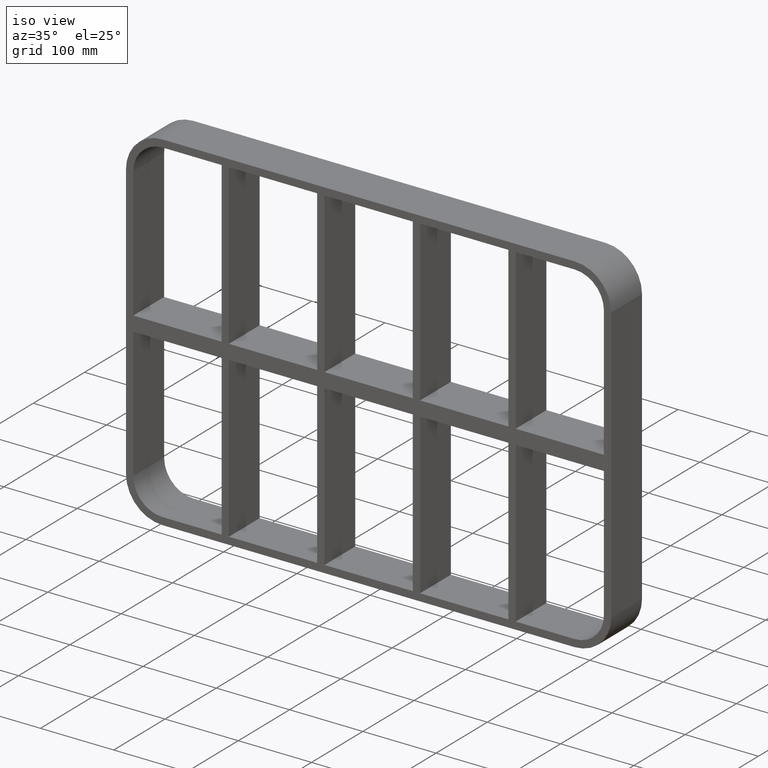
[diagram: clean part render]
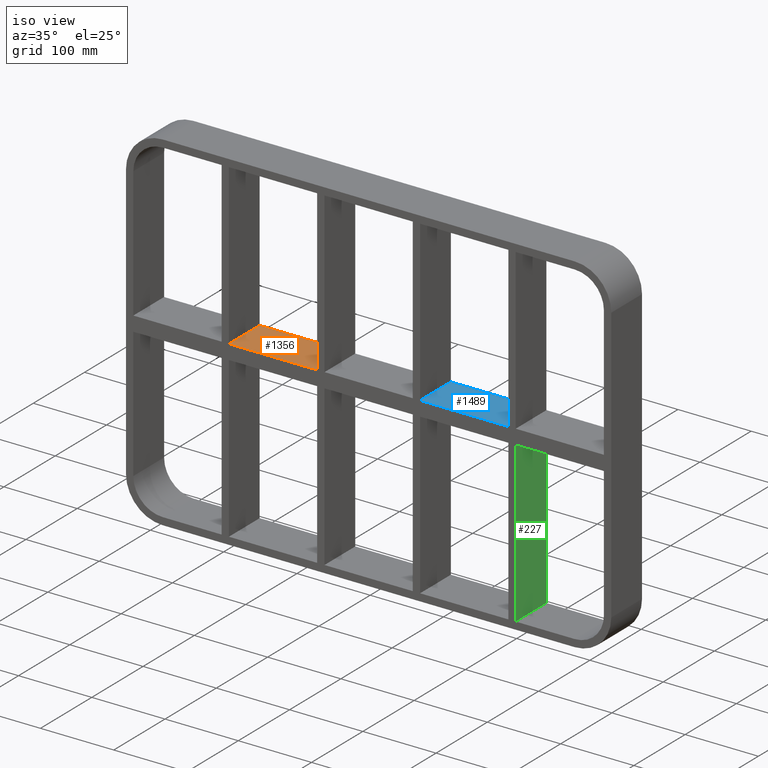
[diagram: same view with three faces highlighted in distinct colors, each labeled with its STEP entity id]
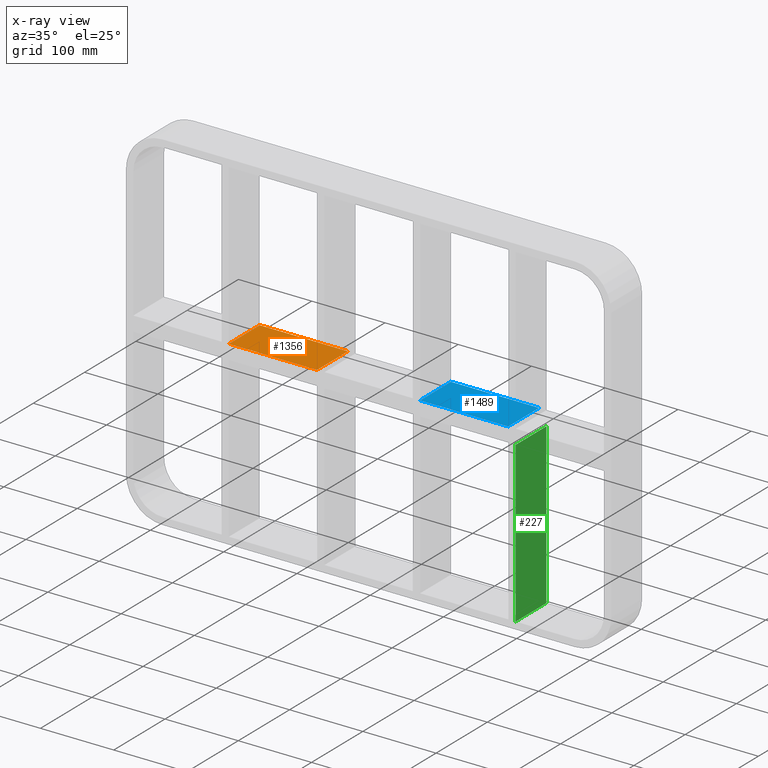
[diagram: x-ray of the same camera — body ghosted, the three highlighted faces saturated]
A machine part, iso view with three faces highlighted in distinct colors.
The next image is the same camera in x-ray (body ghosted, the three faces saturated) — at least one of them is partly hidden behind the body in this view.
Their STEP definitions:

[orange] entity #1356 — the highlighted planar face has unit normal (0, 0, 1).
#393=CARTESIAN_POINT('',(-70.250000000001464,-3.0,10.0));
#394=VERTEX_POINT('',#393);
#395=CARTESIAN_POINT('',(-70.250000000001464,57.0,10.0));
#396=VERTEX_POINT('',#395);
#397=CARTESIAN_POINT('',(-70.250000000001492,-3.0,10.0));
#398=DIRECTION('',(0.0,1.0,0.0));
#399=VECTOR('',#398,60.0);
#400=LINE('',#397,#399);
#401=EDGE_CURVE('',#394,#396,#400,.T.);
#801=CARTESIAN_POINT('',(-190.75000000000728,-3.0,10.0));
#802=VERTEX_POINT('',#801);
#803=CARTESIAN_POINT('',(-190.7500000000073,-3.0,10.0));
#804=DIRECTION('',(1.0,0.0,0.0));
#805=VECTOR('',#804,120.5000000000058);
#806=LINE('',#803,#805);
#807=EDGE_CURVE('',#802,#394,#806,.T.);
#1323=CARTESIAN_POINT('',(-190.75000000000728,57.0,10.0));
#1324=VERTEX_POINT('',#1323);
#1331=CARTESIAN_POINT('',(-190.7500000000073,57.0,10.0));
#1332=DIRECTION('',(1.0,0.0,0.0));
#1333=VECTOR('',#1332,120.5000000000058);
#1334=LINE('',#1331,#1333);
#1335=EDGE_CURVE('',#1324,#396,#1334,.T.);
#1340=CARTESIAN_POINT('',(-321.24999999999989,-3.0,10.0));
#1341=DIRECTION('',(0.0,0.0,1.0));
#1342=DIRECTION('',(1.0,0.0,0.0));
#1343=AXIS2_PLACEMENT_3D('',#1340,#1341,#1342);
#1344=PLANE('',#1343);
#1345=ORIENTED_EDGE('',*,*,#401,.T.);
#1346=ORIENTED_EDGE('',*,*,#1335,.F.);
#1347=CARTESIAN_POINT('',(-190.75000000000728,-3.0,10.0));
#1348=DIRECTION('',(0.0,1.0,0.0));
#1349=VECTOR('',#1348,60.0);
#1350=LINE('',#1347,#1349);
#1351=EDGE_CURVE('',#802,#1324,#1350,.T.);
#1352=ORIENTED_EDGE('',*,*,#1351,.F.);
#1353=ORIENTED_EDGE('',*,*,#807,.T.);
#1354=EDGE_LOOP('',(#1345,#1346,#1352,#1353));
#1355=FACE_OUTER_BOUND('',#1354,.T.);
#1356=ADVANCED_FACE('',(#1355),#1344,.T.);

[blue] entity #1489 — the highlighted planar face has unit normal (0, 0, 1).
#73=CARTESIAN_POINT('',(190.74999999999858,-3.0,10.0));
#74=VERTEX_POINT('',#73);
#75=CARTESIAN_POINT('',(190.74999999999858,57.0,10.0));
#76=VERTEX_POINT('',#75);
#77=CARTESIAN_POINT('',(190.74999999999861,-3.0,10.0));
#78=DIRECTION('',(0.0,1.0,0.0));
#79=VECTOR('',#78,60.0);
#80=LINE('',#77,#79);
#81=EDGE_CURVE('',#74,#76,#80,.T.);
#313=CARTESIAN_POINT('',(70.249999999992738,57.0,10.0));
#314=VERTEX_POINT('',#313);
#315=CARTESIAN_POINT('',(70.249999999992738,-3.0,10.0));
#316=VERTEX_POINT('',#315);
#317=CARTESIAN_POINT('',(70.249999999992738,57.0,10.0));
#318=DIRECTION('',(0.0,-1.0,0.0));
#319=VECTOR('',#318,60.0);
#320=LINE('',#317,#319);
#321=EDGE_CURVE('',#314,#316,#320,.T.);
#740=CARTESIAN_POINT('',(70.249999999992724,-3.0,10.0));
#741=DIRECTION('',(1.0,0.0,0.0));
#742=VECTOR('',#741,120.50000000000585);
#743=LINE('',#740,#742);
#744=EDGE_CURVE('',#316,#74,#743,.T.);
#1187=CARTESIAN_POINT('',(70.249999999992724,57.0,10.0));
#1188=DIRECTION('',(1.0,0.0,0.0));
#1189=VECTOR('',#1188,120.50000000000585);
#1190=LINE('',#1187,#1189);
#1191=EDGE_CURVE('',#314,#76,#1190,.T.);
#1478=CARTESIAN_POINT('',(-321.24999999999989,-3.0,10.0));
#1479=DIRECTION('',(0.0,0.0,1.0));
#1480=DIRECTION('',(1.0,0.0,0.0));
#1481=AXIS2_PLACEMENT_3D('',#1478,#1479,#1480);
#1482=PLANE('',#1481);
#1483=ORIENTED_EDGE('',*,*,#81,.T.);
#1484=ORIENTED_EDGE('',*,*,#1191,.F.);
#1485=ORIENTED_EDGE('',*,*,#321,.T.);
#1486=ORIENTED_EDGE('',*,*,#744,.T.);
#1487=EDGE_LOOP('',(#1483,#1484,#1485,#1486));
#1488=FACE_OUTER_BOUND('',#1487,.T.);
#1489=ADVANCED_FACE('',(#1488),#1482,.T.);

[green] entity #227 — the highlighted planar face has unit normal (1, 0, 0).
#188=CARTESIAN_POINT('',(200.74999999999278,-3.0,228.0));
#189=DIRECTION('',(1.0,0.0,0.0));
#190=DIRECTION('',(0.0,0.0,-1.0));
#191=AXIS2_PLACEMENT_3D('',#188,#189,#190);
#192=PLANE('',#191);
#193=CARTESIAN_POINT('',(200.74999999999278,-3.0,-10.000000000009273));
#194=VERTEX_POINT('',#193);
#195=CARTESIAN_POINT('',(200.74999999999278,57.0,-10.000000000009273));
#196=VERTEX_POINT('',#195);
#197=CARTESIAN_POINT('',(200.74999999999278,-3.0,-10.000000000009273));
#198=DIRECTION('',(0.0,1.0,0.0));
#199=VECTOR('',#198,60.0);
#200=LINE('',#197,#199);
#201=EDGE_CURVE('',#194,#196,#200,.T.);
#202=ORIENTED_EDGE('',*,*,#201,.F.);
#203=CARTESIAN_POINT('',(200.74999999999278,-3.0,-227.99999999998479));
#204=VERTEX_POINT('',#203);
#205=CARTESIAN_POINT('',(200.74999999999278,-3.0,-10.000000000009265));
#206=DIRECTION('',(0.0,0.0,-1.0));
#207=VECTOR('',#206,217.99999999997556);
#208=LINE('',#205,#207);
#209=EDGE_CURVE('',#194,#204,#208,.T.);
#210=ORIENTED_EDGE('',*,*,#209,.T.);
#211=CARTESIAN_POINT('',(200.74999999999278,57.0,-227.99999999998479));
#212=VERTEX_POINT('',#211);
#213=CARTESIAN_POINT('',(200.74999999999278,57.000000000000007,-228.0));
#214=DIRECTION('',(0.0,-1.0,0.0));
#215=VECTOR('',#214,60.000000000000007);
#216=LINE('',#213,#215);
#217=EDGE_CURVE('',#212,#204,#216,.T.);
#218=ORIENTED_EDGE('',*,*,#217,.F.);
#219=CARTESIAN_POINT('',(200.74999999999278,57.0,-10.000000000009265));
#220=DIRECTION('',(0.0,0.0,-1.0));
#221=VECTOR('',#220,217.99999999997556);
#222=LINE('',#219,#221);
#223=EDGE_CURVE('',#196,#212,#222,.T.);
#224=ORIENTED_EDGE('',*,*,#223,.F.);
#225=EDGE_LOOP('',(#202,#210,#218,#224));
#226=FACE_OUTER_BOUND('',#225,.T.);
#227=ADVANCED_FACE('',(#226),#192,.T.);